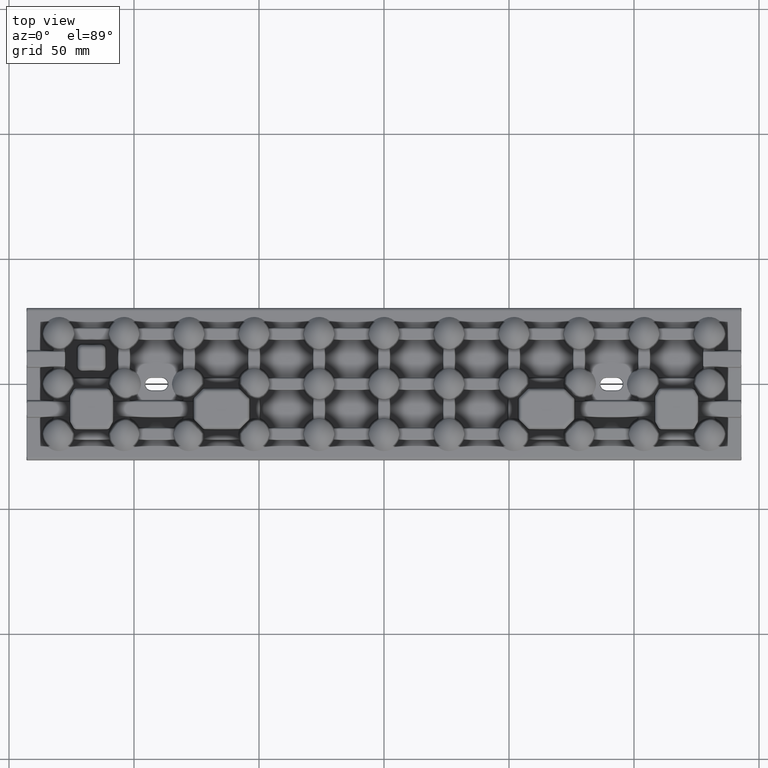
[diagram: clean part render]
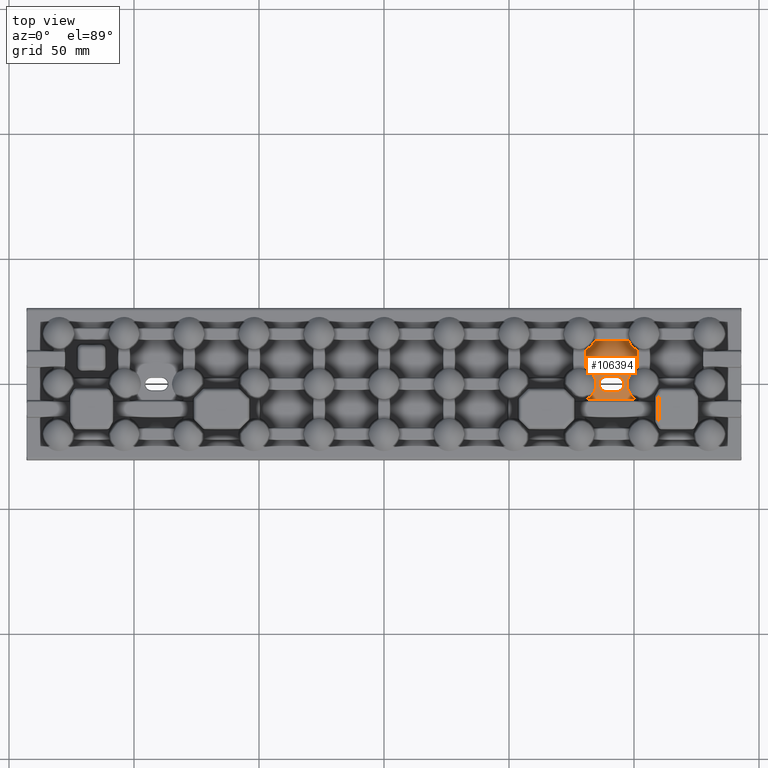
[diagram: same view with one face highlighted and labeled with its STEP entity id]
A machine part, top view. The second image highlights one B-rep face of the part: STEP entity #106394.
In plain terms, the highlighted planar face has unit normal (-0, 0, 1).
Its self-contained STEP definition (entity closure, byte-faithful):
#140 = CARTESIAN_POINT ( 'NONE',  ( 80.74142219370166600, 13.75078054035923500, 2.000000000000000000 ) ) ;
#1219 = CARTESIAN_POINT ( 'NONE',  ( 101.2585778062981300, 13.75078107891199700, 2.000000000000000000 ) ) ;
#1934 = CARTESIAN_POINT ( 'NONE',  ( 82.62680599041954100, 15.03561499585804900, 2.000000000000178500 ) ) ;
#2265 = LINE ( 'NONE', #106687, #66477 ) ;
#2658 = CARTESIAN_POINT ( 'NONE',  ( 100.6299508359962000, -5.931031712519844800, 2.000000000000244700 ) ) ;
#2842 = DIRECTION ( 'NONE',  ( 1.000000000000000000, 0.0000000000000000000, 0.0000000000000000000 ) ) ;
#3699 = LINE ( 'NONE', #14494, #90172 ) ;
#3703 = ORIENTED_EDGE ( 'NONE', *, *, #87476, .T. ) ;
#3999 = ORIENTED_EDGE ( 'NONE', *, *, #63302, .T. ) ;
#5392 = CARTESIAN_POINT ( 'NONE',  ( 80.78621091911821800, -6.228681456733721000, 2.000000000000000000 ) ) ;
#5553 = LINE ( 'NONE', #13816, #91970 ) ;
#5756 = CARTESIAN_POINT ( 'NONE',  ( 84.25995648285876900, -2.503501558130620400, 1.999999999999999100 ) ) ;
#6128 = CARTESIAN_POINT ( 'NONE',  ( 84.55147702214790700, 1.642621875471818500, 2.000000000000000000 ) ) ;
#6476 = CARTESIAN_POINT ( 'NONE',  ( 92.99999999999990100, -1.592040838891558300E-015, 2.000000000000000000 ) ) ;
#7147 = CARTESIAN_POINT ( 'NONE',  ( 97.23716983166220000, 0.6786475596721682800, 2.000000000000000000 ) ) ;
#7520 = CARTESIAN_POINT ( 'NONE',  ( 99.11146395548321700, -4.701549327662411800, 2.000000000000000900 ) ) ;
#7886 = CARTESIAN_POINT ( 'NONE',  ( 97.84803801582890500, 17.25857780629792200, 2.000000000000000000 ) ) ;
#8253 = LINE ( 'NONE', #18916, #33103 ) ;
#10365 = CARTESIAN_POINT ( 'NONE',  ( 83.32086421792645600, 15.81156376606055900, 2.000000000000000000 ) ) ;
#11091 = CARTESIAN_POINT ( 'NONE',  ( 101.2137902352016300, -6.228681456733721000, 2.000000000000000000 ) ) ;
#11947 = CARTESIAN_POINT ( 'NONE',  ( 88.99999999999990100, 3.012859658342084600, 2.000000000000000000 ) ) ;
#12719 = VERTEX_POINT ( 'NONE', #84600 ) ;
#13488 = VERTEX_POINT ( 'NONE', #63960 ) ;
#13535 = CIRCLE ( 'NONE', #95470, 3.012859658342081900 ) ;
#13816 = CARTESIAN_POINT ( 'NONE',  ( 88.99999999999990100, -3.012859658342088600, 2.000000000000000000 ) ) ;
#14155 = CARTESIAN_POINT ( 'NONE',  ( 84.56902727406632900, -1.578735349903782800, 2.000000000000001800 ) ) ;
#14494 = CARTESIAN_POINT ( 'NONE',  ( 101.2585778062981300, 14.43582890270260500, 2.000000000000000000 ) ) ;
#14522 = CARTESIAN_POINT ( 'NONE',  ( 83.98281886152986400, 3.162031402949580200, 1.999999999999999600 ) ) ;
#14875 = DIRECTION ( 'NONE',  ( 1.000000000000000000, 0.0000000000000000000, 0.0000000000000000000 ) ) ;
#15200 = CARTESIAN_POINT ( 'NONE',  ( 99.38166130156203300, 4.979154571043531000, 2.000000000000001300 ) ) ;
#15392 = AXIS2_PLACEMENT_3D ( 'NONE', #41403, #99993, #49853 ) ;
#15570 = CARTESIAN_POINT ( 'NONE',  ( 97.16536462093772300, 0.1926938182105508700, 2.000000000000000900 ) ) ;
#16099 = EDGE_CURVE ( 'NONE', #12719, #104590, #13535, .T. ) ;
#17544 = VERTEX_POINT ( 'NONE', #28743 ) ;
#18768 = CARTESIAN_POINT ( 'NONE',  ( 83.98196253370331000, 16.87445054315092100, 1.999999999999998700 ) ) ;
#18793 = FACE_BOUND ( 'NONE', #80564, .T. ) ;
#18916 = CARTESIAN_POINT ( 'NONE',  ( -3.266548986968408800E-016, 3.012859658342074800, 2.000000000000000000 ) ) ;
#20448 = EDGE_CURVE ( 'NONE', #99442, #80634, #101101, .T. ) ;
#20698 = VERTEX_POINT ( 'NONE', #80598 ) ;
#20902 = LINE ( 'NONE', #53732, #90391 ) ;
#20981 = DIRECTION ( 'NONE',  ( 1.000000000000000000, -0.0000000000000000000, 0.0000000000000000000 ) ) ;
#22213 = DIRECTION ( 'NONE',  ( -1.000000000000000000, -1.084202172485503300E-016, -0.0000000000000000000 ) ) ;
#22346 = VERTEX_POINT ( 'NONE', #74236 ) ;
#22556 = CARTESIAN_POINT ( 'NONE',  ( 84.74485755747321000, -0.7798094211570336700, 2.000000000000001300 ) ) ;
#22940 = CARTESIAN_POINT ( 'NONE',  ( 83.26682848698484900, 4.252048536654123200, 2.000000000000000000 ) ) ;
#23600 = CARTESIAN_POINT ( 'NONE',  ( 98.73099869989626100, 4.249187535298512200, 2.000000000000000000 ) ) ;
#23603 = ORIENTED_EDGE ( 'NONE', *, *, #24280, .F. ) ;
#23958 = CARTESIAN_POINT ( 'NONE',  ( 97.18106599678573300, -0.2982272362905828400, 1.999999999999993100 ) ) ;
#24280 = EDGE_CURVE ( 'NONE', #76537, #17544, #79612, .T. ) ;
#25406 = CARTESIAN_POINT ( 'NONE',  ( 84.15196062444518100, 17.25857780629792200, 2.000000000000000000 ) ) ;
#26099 = CARTESIAN_POINT ( 'NONE',  ( 97.84803801582890500, 17.25857780629792200, 2.000000000000000000 ) ) ;
#26844 = ORIENTED_EDGE ( 'NONE', *, *, #30514, .F. ) ;
#27344 = DIRECTION ( 'NONE',  ( 1.000000000000000000, 1.084202172485503300E-016, -0.0000000000000000000 ) ) ;
#28743 = CARTESIAN_POINT ( 'NONE',  ( 101.2137902352016300, -6.228681456733721000, 2.000000000000000000 ) ) ;
#29078 = EDGE_CURVE ( 'NONE', #104590, #80779, #8253, .T. ) ;
#29380 = EDGE_CURVE ( 'NONE', #80779, #22346, #39633, .T. ) ;
#29406 = EDGE_LOOP ( 'NONE', ( #23603, #40753, #26844, #58479, #101124, #94888, #101568, #3703 ) ) ;
#30514 = EDGE_CURVE ( 'NONE', #58218, #13488, #46862, .T. ) ;
#30629 = CARTESIAN_POINT ( 'NONE',  ( 81.92448933652036700, -5.594740432422357300, 2.000000000000000900 ) ) ;
#31004 = CARTESIAN_POINT ( 'NONE',  ( 84.81945597588516300, -0.2939317916749042400, 1.999999999999999600 ) ) ;
#31373 = CARTESIAN_POINT ( 'NONE',  ( 82.61962095094342800, 4.977646524967387800, 1.999999999999999600 ) ) ;
#32032 = CARTESIAN_POINT ( 'NONE',  ( 98.19190535487319900, 3.438490735611727400, 2.000000000000001800 ) ) ;
#32384 = CARTESIAN_POINT ( 'NONE',  ( 97.25588712081163600, -0.7838927560071979900, 2.000000000000000000 ) ) ;
#33103 = VECTOR ( 'NONE', #27344, 1000.000000000000000 ) ;
#33457 = EDGE_CURVE ( 'NONE', #99442, #80056, #20902, .T. ) ;
#33478 = VECTOR ( 'NONE', #20981, 1000.000000000000000 ) ;
#34528 = CARTESIAN_POINT ( 'NONE',  ( 98.64256855510515700, 15.79265970607014300, 2.000000000000000400 ) ) ;
#35060 = PLANE ( 'NONE',  #51783 ) ;
#35243 = CARTESIAN_POINT ( 'NONE',  ( 81.12442279948061200, 13.92465441475601100, 2.000000000000000000 ) ) ;
#35473 = CARTESIAN_POINT ( 'NONE',  ( 80.74142219370168000, 6.249219459640719300, 2.000000000000000000 ) ) ;
#35788 = EDGE_CURVE ( 'NONE', #76537, #13488, #3699, .T. ) ;
#39025 = CARTESIAN_POINT ( 'NONE',  ( 82.88556310275400600, -4.704835749757849700, 2.000000000000000000 ) ) ;
#39387 = CARTESIAN_POINT ( 'NONE',  ( 84.83409567556715600, 0.1974789427238344000, 2.000000000000000000 ) ) ;
#39633 = CIRCLE ( 'NONE', #89895, 3.012859658342081900 ) ;
#39770 = CARTESIAN_POINT ( 'NONE',  ( 81.87768031351879500, 5.599111541023394700, 2.000000000000069700 ) ) ;
#40068 = DIRECTION ( 'NONE',  ( -1.000000000000000000, 0.0000000000000000000, 0.0000000000000000000 ) ) ;
#40440 = CARTESIAN_POINT ( 'NONE',  ( 97.76189490647682600, 2.557141670485569800, 2.000000000000000400 ) ) ;
#40753 = ORIENTED_EDGE ( 'NONE', *, *, #35788, .T. ) ;
#40800 = CARTESIAN_POINT ( 'NONE',  ( 97.43216713829438900, -1.583007882295495800, 2.000000000000033300 ) ) ;
#41403 = CARTESIAN_POINT ( 'NONE',  ( 92.99999999999990100, -1.592040838891558300E-015, 2.000000000000000000 ) ) ;
#42968 = CARTESIAN_POINT ( 'NONE',  ( 99.83742774769457600, 14.61185104281371700, 2.000000000000000400 ) ) ;
#43506 = DIRECTION ( 'NONE',  ( 1.000000000000000000, 0.0000000000000000000, 0.0000000000000000000 ) ) ;
#43684 = CARTESIAN_POINT ( 'NONE',  ( 81.99248718052228900, 14.49150955926180600, 2.000000000000000400 ) ) ;
#44177 = DIRECTION ( 'NONE',  ( 9.251858538542944200E-016, -1.000000000000000000, 0.0000000000000000000 ) ) ;
#44400 = CARTESIAN_POINT ( 'NONE',  ( 99.33650973575908000, -4.934991599554029700, 2.000000000000000400 ) ) ;
#46088 = EDGE_CURVE ( 'NONE', #58218, #80634, #2265, .T. ) ;
#46862 = B_SPLINE_CURVE_WITH_KNOTS ( 'NONE', 3,
 ( #26099, #76274, #34528, #93103, #42968, #101536, #51414, #1219 ),
 .UNSPECIFIED., .F., .F.,
 ( 4, 2, 2, 4 ),
 ( 0.0000000000000000000, 0.002490340932246773900, 0.003735511398370173200, 0.004980681864493572900 ),
 .UNSPECIFIED. ) ;
#47511 = CARTESIAN_POINT ( 'NONE',  ( 83.49185419600179600, -3.942373460402190900, 2.000000000000000900 ) ) ;
#47883 = CARTESIAN_POINT ( 'NONE',  ( 84.76195193148227200, 0.6837550330147663700, 1.999999999999999600 ) ) ;
#48248 = CARTESIAN_POINT ( 'NONE',  ( 81.04056057466876000, 6.113417195898225700, 2.000000000000002200 ) ) ;
#48913 = CARTESIAN_POINT ( 'NONE',  ( 97.44678551431439900, 1.636150752317359100, 2.000000000000000000 ) ) ;
#49270 = CARTESIAN_POINT ( 'NONE',  ( 97.98612955670411400, -3.102034713579411300, 2.000000000000023100 ) ) ;
#49853 = DIRECTION ( 'NONE',  ( 1.000000000000000000, 0.0000000000000000000, 0.0000000000000000000 ) ) ;
#51414 = CARTESIAN_POINT ( 'NONE',  ( 100.8743793482546400, 13.92519872207735100, 2.000000000000000400 ) ) ;
#51783 = AXIS2_PLACEMENT_3D ( 'NONE', #101702, #93641, #43506 ) ;
#52112 = CARTESIAN_POINT ( 'NONE',  ( 82.47323666668074800, 14.89086649848456800, 2.000000000000031500 ) ) ;
#52499 = DIRECTION ( 'NONE',  ( 0.0000000000000000000, 1.000000000000000000, -0.0000000000000000000 ) ) ;
#52857 = CARTESIAN_POINT ( 'NONE',  ( 100.0841291743073400, -5.571384456611232500, 2.000000000000245600 ) ) ;
#53045 = DIRECTION ( 'NONE',  ( 0.0000000000000000000, -0.0000000000000000000, -1.000000000000000000 ) ) ;
#53732 = CARTESIAN_POINT ( 'NONE',  ( 80.74142219370168000, 5.564171097297414500, 2.000000000000000000 ) ) ;
#55939 = CARTESIAN_POINT ( 'NONE',  ( 83.99082520507605000, -3.098066046033651800, 1.999999999999999100 ) ) ;
#56304 = CARTESIAN_POINT ( 'NONE',  ( 84.63391221947289000, 1.324680266042849600, 2.000000000000000000 ) ) ;
#57318 = CARTESIAN_POINT ( 'NONE',  ( 97.26620264165102000, 0.8396482230856751100, 2.000000000000000000 ) ) ;
#57674 = CARTESIAN_POINT ( 'NONE',  ( 98.69603552994280400, -4.203325171595918300, 2.000000000000000900 ) ) ;
#58218 = VERTEX_POINT ( 'NONE', #7886 ) ;
#58479 = ORIENTED_EDGE ( 'NONE', *, *, #46088, .T. ) ;
#59615 = CARTESIAN_POINT ( 'NONE',  ( 80.78621091911821800, -6.228681456733721000, 2.000000000000000000 ) ) ;
#60168 = CARTESIAN_POINT ( 'NONE',  ( 80.74142219370166600, 13.75078054035923500, 2.000000000000000000 ) ) ;
#60536 = CARTESIAN_POINT ( 'NONE',  ( 83.06226778939625900, 15.48686660906712700, 2.000000000000178500 ) ) ;
#61240 = CARTESIAN_POINT ( 'NONE',  ( 100.9153635696635700, -6.090467834086486400, 2.000000000000000400 ) ) ;
#63302 = EDGE_CURVE ( 'NONE', #20698, #12719, #5553, .T. ) ;
#63960 = CARTESIAN_POINT ( 'NONE',  ( 101.2585778062981300, 13.75078107891199700, 2.000000000000000000 ) ) ;
#64321 = CARTESIAN_POINT ( 'NONE',  ( 84.37481517646551800, -2.199363466320295200, 2.000000000000001300 ) ) ;
#64680 = CARTESIAN_POINT ( 'NONE',  ( 84.25166428362915400, 2.574612175358768500, 2.000000000000000000 ) ) ;
#65031 = DIRECTION ( 'NONE',  ( 0.0000000000000000000, -0.0000000000000000000, -1.000000000000000000 ) ) ;
#65339 = CARTESIAN_POINT ( 'NONE',  ( 100.1173947175992800, 5.624932895819390500, 2.000000000000001300 ) ) ;
#65706 = CARTESIAN_POINT ( 'NONE',  ( 97.18825202316901400, 0.3550730699442453700, 2.000000000000000900 ) ) ;
#66477 = VECTOR ( 'NONE', #40068, 1000.000000000000000 ) ;
#68925 = CARTESIAN_POINT ( 'NONE',  ( 83.78047707725215800, 16.50428683134011400, 2.000000000000000400 ) ) ;
#72366 = CARTESIAN_POINT ( 'NONE',  ( 81.38319380067287100, -5.952194011096866100, 2.000000000000000000 ) ) ;
#72745 = CARTESIAN_POINT ( 'NONE',  ( 84.64883227696118700, -1.262161570623273200, 2.000000000000001800 ) ) ;
#73096 = CARTESIAN_POINT ( 'NONE',  ( 83.46203766253307800, 3.985387656030719300, 2.000000000000000400 ) ) ;
#73407 = CARTESIAN_POINT ( 'NONE',  ( 101.2585778062981300, 6.249218921087984500, 2.000000000000000000 ) ) ;
#73777 = CARTESIAN_POINT ( 'NONE',  ( 99.15088739568700800, 4.744131223860201800, 2.000000000000000400 ) ) ;
#74124 = CARTESIAN_POINT ( 'NONE',  ( 97.15962329091247800, -0.1351194045003008800, 2.000000000000000900 ) ) ;
#74236 = CARTESIAN_POINT ( 'NONE',  ( 96.01285965834198100, -1.592040838891558300E-015, 2.000000000000000000 ) ) ;
#76274 = CARTESIAN_POINT ( 'NONE',  ( 98.18890816792817600, 16.48834890320416900, 2.000000000000000000 ) ) ;
#76537 = VERTEX_POINT ( 'NONE', #103173 ) ;
#77358 = CARTESIAN_POINT ( 'NONE',  ( 84.15196062444518100, 17.25857780629792200, 2.000000000000000000 ) ) ;
#78989 = VERTEX_POINT ( 'NONE', #59615 ) ;
#79472 = ORIENTED_EDGE ( 'NONE', *, *, #29380, .T. ) ;
#79612 = B_SPLINE_CURVE_WITH_KNOTS ( 'NONE', 3,
 ( #73407, #81795, #65339, #15200, #73777, #23600, #82142, #32032, #90600, #40440, #99034, #48913, #107419, #57318, #7147, #65706, #15570, #74124, #23958, #82504, #32384, #90947, #40800, #99390, #49270, #107765, #57674, #7520, #44400, #102982, #52857, #2658, #61240, #11091 ),
 .UNSPECIFIED., .F., .F.,
 ( 4, 2, 2, 2, 2, 2, 2, 2, 2, 2, 2, 2, 2, 2, 2, 2, 4 ),
 ( 3.273069708340168800E-017, 0.001942498100661917100, 0.002913747150992858800, 0.003884996201323801300, 0.004856245251654744300, 0.005827494301985685500, 0.006798743352316628400, 0.007284367877482099900, 0.007769992402647570500, 0.008255616927813040300, 0.008741241452978512600, 0.009712490503309455600, 0.01165498860397134800, 0.01262623765430231000, 0.01359748670463327300, 0.01456873575496423300, 0.01553998480529519500 ),
 .UNSPECIFIED. ) ;
#80056 = VERTEX_POINT ( 'NONE', #35473 ) ;
#80564 = EDGE_LOOP ( 'NONE', ( #3999, #92958, #97176, #79472, #108385 ) ) ;
#80598 = CARTESIAN_POINT ( 'NONE',  ( 92.99999999999990100, -3.012859658342088100, 2.000000000000000000 ) ) ;
#80634 = VERTEX_POINT ( 'NONE', #25406 ) ;
#80779 = VERTEX_POINT ( 'NONE', #96011 ) ;
#81119 = CARTESIAN_POINT ( 'NONE',  ( 84.77299610031816700, -0.6183886379385642500, 1.999999999999999600 ) ) ;
#81485 = CARTESIAN_POINT ( 'NONE',  ( 82.84600676676011200, 4.747487240279084200, 1.999999999999999600 ) ) ;
#81795 = CARTESIAN_POINT ( 'NONE',  ( 100.6604950459015300, 5.977702512569752700, 2.000000000000000000 ) ) ;
#82142 = CARTESIAN_POINT ( 'NONE',  ( 98.53960082900700000, 3.987759539915821000, 2.000000000000000900 ) ) ;
#82504 = CARTESIAN_POINT ( 'NONE',  ( 97.22769484384876600, -0.6225545924143290900, 1.999999999999993600 ) ) ;
#84369 = B_SPLINE_CURVE_WITH_KNOTS ( 'NONE', 3,
 ( #5392, #72366, #30629, #89171, #39025, #97635, #47511, #106029, #55939, #5756, #64321, #14155, #72745, #22556, #81119, #31004, #89545, #39387, #98003, #47883, #106384, #56304, #6128, #64680, #14522, #73096, #22940, #81485, #31373, #89929, #39770, #98363, #48248, #106757 ),
 .UNSPECIFIED., .F., .F.,
 ( 4, 2, 2, 2, 2, 2, 2, 2, 2, 2, 2, 2, 2, 2, 2, 2, 4 ),
 ( 0.0000000000000000000, 0.001945666831502117400, 0.002918500247253160700, 0.003891333663004204300, 0.004864167078755247100, 0.005837000494506290300, 0.006809833910257333400, 0.007296250618132855400, 0.007782667326008376600, 0.008269084033883898600, 0.008755500741759420600, 0.009728334157510462900, 0.01167400098901255100, 0.01264683440476360700, 0.01361966782051466200, 0.01459250123626571800, 0.01556533465201677200 ),
 .UNSPECIFIED. ) ;
#84600 = CARTESIAN_POINT ( 'NONE',  ( 88.99999999999990100, -3.012859658342088600, 2.000000000000000000 ) ) ;
#85364 = CARTESIAN_POINT ( 'NONE',  ( 81.48450281443634000, 14.13240040561219700, 1.999999999999999600 ) ) ;
#87476 = EDGE_CURVE ( 'NONE', #78989, #17544, #97697, .T. ) ;
#87856 = CIRCLE ( 'NONE', #15392, 3.012859658342081900 ) ;
#89171 = CARTESIAN_POINT ( 'NONE',  ( 82.65633651632623500, -4.942105000043102200, 2.000000000000001300 ) ) ;
#89545 = CARTESIAN_POINT ( 'NONE',  ( 84.84074009936833200, -0.1305413129356616000, 1.999999999999999100 ) ) ;
#89895 = AXIS2_PLACEMENT_3D ( 'NONE', #6476, #65031, #14875 ) ;
#89929 = CARTESIAN_POINT ( 'NONE',  ( 82.13541337330089200, 5.403409923597441100, 2.000000000000000000 ) ) ;
#90172 = VECTOR ( 'NONE', #52499, 1000.000000000000000 ) ;
#90391 = VECTOR ( 'NONE', #44177, 1000.000000000000000 ) ;
#90600 = CARTESIAN_POINT ( 'NONE',  ( 98.03500218081883600, 3.148729318508291200, 2.000000000000000000 ) ) ;
#90947 = CARTESIAN_POINT ( 'NONE',  ( 97.35199460052678000, -1.265633907018543600, 1.999999999999999600 ) ) ;
#91970 = VECTOR ( 'NONE', #22213, 1000.000000000000000 ) ;
#92958 = ORIENTED_EDGE ( 'NONE', *, *, #16099, .T. ) ;
#93103 = CARTESIAN_POINT ( 'NONE',  ( 99.52118776446916100, 14.88229091936036000, 2.000000000000001300 ) ) ;
#93410 = EDGE_CURVE ( 'NONE', #78989, #80056, #84369, .T. ) ;
#93641 = DIRECTION ( 'NONE',  ( -0.0000000000000000000, 0.0000000000000000000, 1.000000000000000000 ) ) ;
#94225 = EDGE_CURVE ( 'NONE', #22346, #20698, #87856, .T. ) ;
#94888 = ORIENTED_EDGE ( 'NONE', *, *, #33457, .T. ) ;
#95335 = CARTESIAN_POINT ( 'NONE',  ( 0.0000000000000000000, -6.228681456733721000, 2.000000000000000000 ) ) ;
#95470 = AXIS2_PLACEMENT_3D ( 'NONE', #103150, #53045, #2842 ) ;
#96011 = CARTESIAN_POINT ( 'NONE',  ( 92.99999999999990100, 3.012859658342085000, 2.000000000000000000 ) ) ;
#97176 = ORIENTED_EDGE ( 'NONE', *, *, #29078, .T. ) ;
#97635 = CARTESIAN_POINT ( 'NONE',  ( 83.30218455873338700, -4.205734226251857800, 1.999999999999999100 ) ) ;
#97697 = LINE ( 'NONE', #95335, #33478 ) ;
#98003 = CARTESIAN_POINT ( 'NONE',  ( 84.81108748852054200, 0.3601133827275006000, 1.999999999999999100 ) ) ;
#98363 = CARTESIAN_POINT ( 'NONE',  ( 81.32963431197181600, 5.954702162363104500, 2.000000000000068800 ) ) ;
#99034 = CARTESIAN_POINT ( 'NONE',  ( 97.64497780194298600, 2.254367810717386800, 2.000000000000000000 ) ) ;
#99390 = CARTESIAN_POINT ( 'NONE',  ( 97.72308581375683900, -2.511312787765427800, 2.000000000000032900 ) ) ;
#99442 = VERTEX_POINT ( 'NONE', #140 ) ;
#99993 = DIRECTION ( 'NONE',  ( 0.0000000000000000000, -0.0000000000000000000, -1.000000000000000000 ) ) ;
#101101 = B_SPLINE_CURVE_WITH_KNOTS ( 'NONE', 3,
 ( #60168, #35243, #85364, #43684, #102256, #52112, #1934, #60536, #10365, #68925, #18768, #77358 ),
 .UNSPECIFIED., .F., .F.,
 ( 4, 2, 2, 2, 2, 4 ),
 ( 1.962615573354719000E-017, 0.001243938167615048300, 0.001865907251422545500, 0.002487876335230042500, 0.003731814502845011700, 0.004975752670459981800 ),
 .UNSPECIFIED. ) ;
#101124 = ORIENTED_EDGE ( 'NONE', *, *, #20448, .F. ) ;
#101536 = CARTESIAN_POINT ( 'NONE',  ( 100.5140398705139000, 14.13332801902850200, 2.000000000000001300 ) ) ;
#101568 = ORIENTED_EDGE ( 'NONE', *, *, #93410, .F. ) ;
#101702 = CARTESIAN_POINT ( 'NONE',  ( 0.0000000000000000000, 0.0000000000000000000, 2.000000000000000000 ) ) ;
#102256 = CARTESIAN_POINT ( 'NONE',  ( 82.15641004276024300, 14.61920051927776900, 2.000000000000031500 ) ) ;
#102982 = CARTESIAN_POINT ( 'NONE',  ( 99.82227450699856800, -5.369623302055091900, 2.000000000000000000 ) ) ;
#103150 = CARTESIAN_POINT ( 'NONE',  ( 88.99999999999990100, -1.836970198721029200E-015, 2.000000000000000000 ) ) ;
#103173 = CARTESIAN_POINT ( 'NONE',  ( 101.2585778062981300, 6.249218921087984500, 2.000000000000000000 ) ) ;
#104590 = VERTEX_POINT ( 'NONE', #11947 ) ;
#106029 = CARTESIAN_POINT ( 'NONE',  ( 83.83587674051347000, -3.389487999047564100, 2.000000000000001800 ) ) ;
#106384 = CARTESIAN_POINT ( 'NONE',  ( 84.73285744835317200, 0.8446090308413117800, 2.000000000000000400 ) ) ;
#106394 = ADVANCED_FACE ( 'NONE', ( #107888, #18793 ), #35060, .T. ) ;
#106687 = CARTESIAN_POINT ( 'NONE',  ( 83.56417109729717700, 17.25857780629792200, 2.000000000000000000 ) ) ;
#106757 = CARTESIAN_POINT ( 'NONE',  ( 80.74142219370168000, 6.249219459640719300, 2.000000000000000000 ) ) ;
#107419 = CARTESIAN_POINT ( 'NONE',  ( 97.36508675102025700, 1.320623412311514100, 2.000000000000000000 ) ) ;
#107765 = CARTESIAN_POINT ( 'NONE',  ( 98.50473933556327200, -3.937586493121906900, 2.000000000000022200 ) ) ;
#107888 = FACE_OUTER_BOUND ( 'NONE', #29406, .T. ) ;
#108385 = ORIENTED_EDGE ( 'NONE', *, *, #94225, .T. ) ;